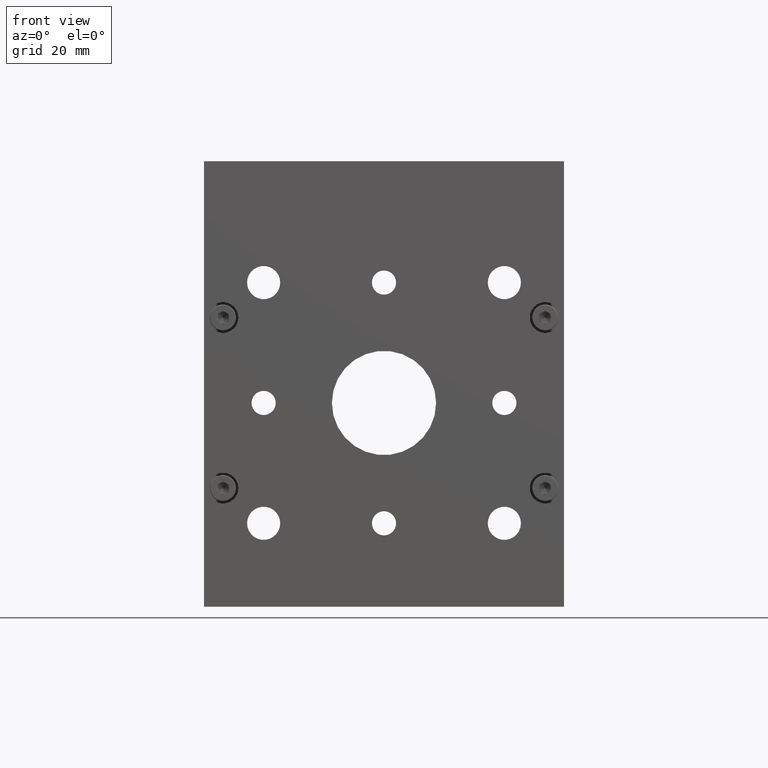
[diagram: clean part render]
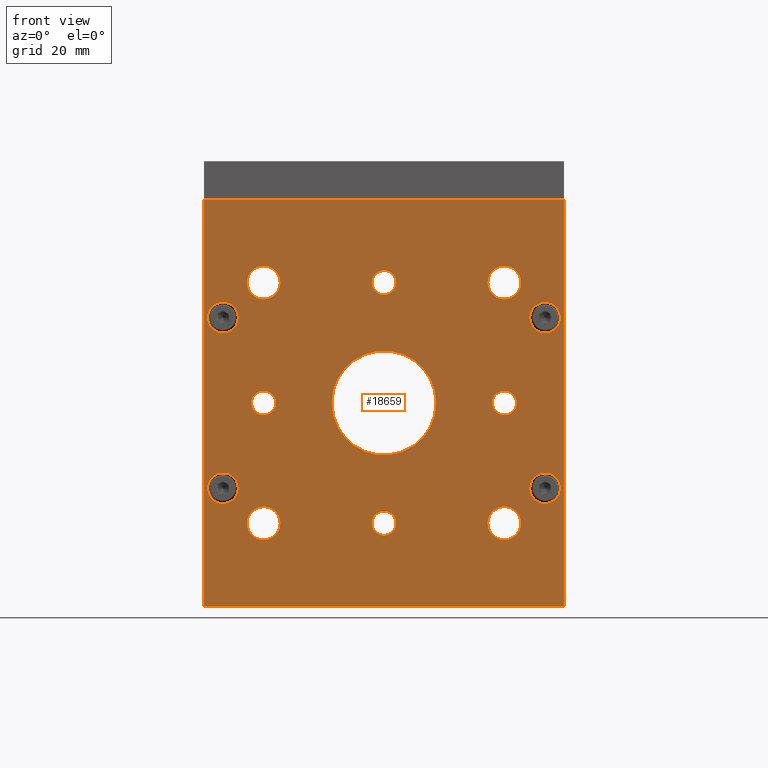
[diagram: same view with one face highlighted and labeled with its STEP entity id]
A machine part, front view. The second image highlights one B-rep face of the part: STEP entity #18659.
In plain terms, the highlighted planar face has unit normal (-0, -1, -0).
Its self-contained STEP definition (entity closure, byte-faithful):
#70 = DIRECTION ( 'NONE',  ( -1.000000000000000000, 0.0000000000000000000, 0.0000000000000000000 ) ) ;
#93 = ORIENTED_EDGE ( 'NONE', *, *, #16561, .F. ) ;
#144 = DIRECTION ( 'NONE',  ( -1.600897037462275600E-047, -1.000000000000000000, -1.224606353822377000E-016 ) ) ;
#155 = VERTEX_POINT ( 'NONE', #13869 ) ;
#421 = VERTEX_POINT ( 'NONE', #1916 ) ;
#617 = DIRECTION ( 'NONE',  ( -1.000000000000000000, 0.0000000000000000000, 0.0000000000000000000 ) ) ;
#632 = CARTESIAN_POINT ( 'NONE',  ( -25.39999999999999900, 2.255140518769849200E-014, 25.39999999999999900 ) ) ;
#674 = EDGE_LOOP ( 'NONE', ( #8489, #2364 ) ) ;
#720 = AXIS2_PLACEMENT_3D ( 'NONE', #19387, #32978, #19513 ) ;
#784 = EDGE_LOOP ( 'NONE', ( #30684, #19896 ) ) ;
#925 = CARTESIAN_POINT ( 'NONE',  ( -38.00000000000001400, 2.255140518769849200E-014, 43.00000000000000000 ) ) ;
#929 = DIRECTION ( 'NONE',  ( 1.000000000000000000, 0.0000000000000000000, 0.0000000000000000000 ) ) ;
#1094 = EDGE_LOOP ( 'NONE', ( #1379, #12726 ) ) ;
#1290 = CIRCLE ( 'NONE', #17888, 2.552699999999998000 ) ;
#1342 = CARTESIAN_POINT ( 'NONE',  ( -3.627410363077837300E-015, 2.255140518769849200E-014, 25.39999999999999900 ) ) ;
#1379 = ORIENTED_EDGE ( 'NONE', *, *, #30394, .T. ) ;
#1788 = ORIENTED_EDGE ( 'NONE', *, *, #27771, .T. ) ;
#1789 = AXIS2_PLACEMENT_3D ( 'NONE', #32107, #26209, #7375 ) ;
#1916 = CARTESIAN_POINT ( 'NONE',  ( -28.89999999999998800, 2.255140518769849200E-014, 25.39999999999999900 ) ) ;
#2111 = AXIS2_PLACEMENT_3D ( 'NONE', #13376, #35052, #21685 ) ;
#2182 = DIRECTION ( 'NONE',  ( -1.848892746611748400E-031, -1.000000000000000000, -1.224606353822377300E-016 ) ) ;
#2364 = ORIENTED_EDGE ( 'NONE', *, *, #3257, .F. ) ;
#2516 = DIRECTION ( 'NONE',  ( 1.000000000000000000, 0.0000000000000000000, 0.0000000000000000000 ) ) ;
#2713 = AXIS2_PLACEMENT_3D ( 'NONE', #6570, #17860, #14657 ) ;
#2799 = EDGE_CURVE ( 'NONE', #4566, #21662, #26670, .T. ) ;
#2809 = CARTESIAN_POINT ( 'NONE',  ( -37.25000000000000000, 2.602085213965210600E-014, 18.00000000000000000 ) ) ;
#3257 = EDGE_CURVE ( 'NONE', #11208, #15787, #5294, .T. ) ;
#3354 = CARTESIAN_POINT ( 'NONE',  ( 38.00000000000001400, 2.255140518769849200E-014, 43.00000000000000000 ) ) ;
#3404 = DIRECTION ( 'NONE',  ( 1.000000000000000000, 0.0000000000000000000, 0.0000000000000000000 ) ) ;
#3514 = VERTEX_POINT ( 'NONE', #31244 ) ;
#3774 = DIRECTION ( 'NONE',  ( 1.848892746611748400E-031, 1.000000000000000000, 1.224606353822377300E-016 ) ) ;
#3842 = CIRCLE ( 'NONE', #8502, 3.249999999999996000 ) ;
#3850 = EDGE_CURVE ( 'NONE', #28238, #19453, #13767, .T. ) ;
#4237 = EDGE_CURVE ( 'NONE', #26884, #34875, #24403, .T. ) ;
#4351 = VERTEX_POINT ( 'NONE', #29411 ) ;
#4566 = VERTEX_POINT ( 'NONE', #925 ) ;
#4640 = EDGE_CURVE ( 'NONE', #30622, #17416, #16668, .T. ) ;
#5290 = EDGE_CURVE ( 'NONE', #21717, #9640, #3842, .T. ) ;
#5294 = CIRCLE ( 'NONE', #11612, 3.499999999999989300 ) ;
#5368 = AXIS2_PLACEMENT_3D ( 'NONE', #1342, #28476, #20175 ) ;
#5454 = CARTESIAN_POINT ( 'NONE',  ( 25.39999999999999900, 2.949029909160572100E-014, -25.39999999999999900 ) ) ;
#5478 = DIRECTION ( 'NONE',  ( -1.848892746611748400E-031, -1.000000000000000000, -1.224606353822377300E-016 ) ) ;
#5499 = CARTESIAN_POINT ( 'NONE',  ( 30.75000000000000700, 2.602085213965210600E-014, 18.00000000000000000 ) ) ;
#5593 = EDGE_CURVE ( 'NONE', #421, #17822, #30291, .T. ) ;
#5632 = CIRCLE ( 'NONE', #18963, 3.249999999999996000 ) ;
#5692 = DIRECTION ( 'NONE',  ( 1.000000000000000000, -2.189528850507526700E-047, 4.806702261571226000E-032 ) ) ;
#5921 = FACE_BOUND ( 'NONE', #22144, .T. ) ;
#6020 = DIRECTION ( 'NONE',  ( 1.848892746611748400E-031, 1.000000000000000000, 1.224606353822377300E-016 ) ) ;
#6238 = CIRCLE ( 'NONE', #26968, 2.552699999999998000 ) ;
#6570 = CARTESIAN_POINT ( 'NONE',  ( -34.00000000000000000, 2.949029909160572100E-014, -18.00000000000000400 ) ) ;
#6702 = AXIS2_PLACEMENT_3D ( 'NONE', #7597, #2182, #15799 ) ;
#6860 = DIRECTION ( 'NONE',  ( -1.848892746611748400E-031, -1.000000000000000000, -1.224606353822377300E-016 ) ) ;
#6944 = ORIENTED_EDGE ( 'NONE', *, *, #4237, .F. ) ;
#7029 = EDGE_CURVE ( 'NONE', #27795, #32205, #32438, .T. ) ;
#7129 = EDGE_CURVE ( 'NONE', #17416, #30622, #9299, .T. ) ;
#7262 = ORIENTED_EDGE ( 'NONE', *, *, #11184, .F. ) ;
#7375 = DIRECTION ( 'NONE',  ( 1.000000000000000000, 0.0000000000000000000, 0.0000000000000000000 ) ) ;
#7597 = CARTESIAN_POINT ( 'NONE',  ( -25.39999999999999900, 2.949029909160572100E-014, -25.39999999999999900 ) ) ;
#7617 = FACE_OUTER_BOUND ( 'NONE', #14058, .T. ) ;
#7868 = CARTESIAN_POINT ( 'NONE',  ( -1.848892746611744700E-030, 2.775557561562891400E-014, -1.224606353822373700E-015 ) ) ;
#7875 = VERTEX_POINT ( 'NONE', #25335 ) ;
#8027 = CIRCLE ( 'NONE', #33602, 3.499999999999989300 ) ;
#8100 = DIRECTION ( 'NONE',  ( 1.000000000000000000, 0.0000000000000000000, 0.0000000000000000000 ) ) ;
#8392 = CARTESIAN_POINT ( 'NONE',  ( -37.25000000000000000, 2.949029909160572100E-014, -18.00000000000000400 ) ) ;
#8472 = FACE_BOUND ( 'NONE', #15342, .T. ) ;
#8489 = ORIENTED_EDGE ( 'NONE', *, *, #16958, .F. ) ;
#8502 = AXIS2_PLACEMENT_3D ( 'NONE', #23153, #6860, #25932 ) ;
#8708 = AXIS2_PLACEMENT_3D ( 'NONE', #9052, #11917, #31010 ) ;
#8749 = CIRCLE ( 'NONE', #1789, 3.249999999999996000 ) ;
#9052 = CARTESIAN_POINT ( 'NONE',  ( -25.39999999999999900, 2.255140518769849200E-014, 25.39999999999999900 ) ) ;
#9059 = CARTESIAN_POINT ( 'NONE',  ( 25.39999999999999900, 2.949029909160572100E-014, -25.39999999999999900 ) ) ;
#9123 = CARTESIAN_POINT ( 'NONE',  ( -38.00000000000001400, 3.295974604355933500E-014, -43.00000000000000000 ) ) ;
#9177 = VECTOR ( 'NONE', #24793, 1000.000000000000000 ) ;
#9299 = CIRCLE ( 'NONE', #33260, 3.249999999999996000 ) ;
#9313 = AXIS2_PLACEMENT_3D ( 'NONE', #29911, #10792, #16163 ) ;
#9503 = CIRCLE ( 'NONE', #5368, 2.552699999999997100 ) ;
#9565 = ORIENTED_EDGE ( 'NONE', *, *, #22268, .F. ) ;
#9640 = VERTEX_POINT ( 'NONE', #2809 ) ;
#9684 = DIRECTION ( 'NONE',  ( 1.000000000000000000, 0.0000000000000000000, 0.0000000000000000000 ) ) ;
#9839 = EDGE_CURVE ( 'NONE', #25102, #19157, #9503, .T. ) ;
#9866 = AXIS2_PLACEMENT_3D ( 'NONE', #7868, #15603, #32023 ) ;
#9884 = CIRCLE ( 'NONE', #9866, 11.00000000000000000 ) ;
#10087 = ORIENTED_EDGE ( 'NONE', *, *, #14944, .F. ) ;
#10129 = CIRCLE ( 'NONE', #15239, 3.499999999999989300 ) ;
#10352 = VERTEX_POINT ( 'NONE', #23253 ) ;
#10355 = EDGE_CURVE ( 'NONE', #10352, #25959, #12039, .T. ) ;
#10402 = AXIS2_PLACEMENT_3D ( 'NONE', #9059, #30559, #14164 ) ;
#10439 = ORIENTED_EDGE ( 'NONE', *, *, #15725, .T. ) ;
#10492 = LINE ( 'NONE', #30181, #13888 ) ;
#10505 = ORIENTED_EDGE ( 'NONE', *, *, #10355, .T. ) ;
#10782 = CIRCLE ( 'NONE', #14135, 2.552699999999997100 ) ;
#10792 = DIRECTION ( 'NONE',  ( -1.848892746611748400E-031, -1.000000000000000000, -1.224606353822377300E-016 ) ) ;
#10886 = CIRCLE ( 'NONE', #17573, 2.552699999999997100 ) ;
#11059 = EDGE_LOOP ( 'NONE', ( #34974, #9565 ) ) ;
#11163 = ORIENTED_EDGE ( 'NONE', *, *, #7129, .F. ) ;
#11184 = EDGE_CURVE ( 'NONE', #7875, #31989, #10129, .T. ) ;
#11208 = VERTEX_POINT ( 'NONE', #23118 ) ;
#11390 = DIRECTION ( 'NONE',  ( -1.000000000000000000, 2.189528850507526700E-047, -4.806702261571226000E-032 ) ) ;
#11431 = CARTESIAN_POINT ( 'NONE',  ( -27.95269999999999700, 2.602085213965210600E-014, 4.195041347971127200E-015 ) ) ;
#11612 = AXIS2_PLACEMENT_3D ( 'NONE', #5454, #29711, #8100 ) ;
#11872 = ORIENTED_EDGE ( 'NONE', *, *, #22525, .F. ) ;
#11917 = DIRECTION ( 'NONE',  ( -1.848892746611748400E-031, -1.000000000000000000, -1.224606353822377300E-016 ) ) ;
#11921 = EDGE_LOOP ( 'NONE', ( #93, #18374 ) ) ;
#11977 = CARTESIAN_POINT ( 'NONE',  ( 38.00000000000001400, 2.255140518769849200E-014, 43.00000000000000000 ) ) ;
#12039 = LINE ( 'NONE', #11977, #33013 ) ;
#12153 = DIRECTION ( 'NONE',  ( 1.848892746611748400E-031, 1.000000000000000000, 1.224606353822377300E-016 ) ) ;
#12252 = CARTESIAN_POINT ( 'NONE',  ( 25.39999999999999900, 2.602085213965210600E-014, -2.026164391697425300E-015 ) ) ;
#12263 = CARTESIAN_POINT ( 'NONE',  ( -2.552700000000000600, 2.255140518769849200E-014, 25.39999999999999900 ) ) ;
#12270 = CARTESIAN_POINT ( 'NONE',  ( -25.39999999999999900, 2.602085213965210600E-014, 4.195041347971127200E-015 ) ) ;
#12726 = ORIENTED_EDGE ( 'NONE', *, *, #20113, .T. ) ;
#12763 = FACE_BOUND ( 'NONE', #1094, .T. ) ;
#13130 = VERTEX_POINT ( 'NONE', #30134 ) ;
#13376 = CARTESIAN_POINT ( 'NONE',  ( -1.848892746611744700E-030, 2.775557561562891400E-014, -1.224606353822373700E-015 ) ) ;
#13407 = AXIS2_PLACEMENT_3D ( 'NONE', #32938, #144, #24844 ) ;
#13493 = CARTESIAN_POINT ( 'NONE',  ( 25.39999999999999900, 2.255140518769849200E-014, 25.40000000000000200 ) ) ;
#13761 = PLANE ( 'NONE',  #13407 ) ;
#13767 = CIRCLE ( 'NONE', #23704, 2.552699999999997100 ) ;
#13869 = CARTESIAN_POINT ( 'NONE',  ( 11.00000000000000000, 2.775557561562891000E-014, 1.837354429308317800E-016 ) ) ;
#13888 = VECTOR ( 'NONE', #5692, 1000.000000000000000 ) ;
#13973 = CARTESIAN_POINT ( 'NONE',  ( -25.39999999999999900, 2.602085213965210600E-014, 4.195041347971127200E-015 ) ) ;
#14058 = EDGE_LOOP ( 'NONE', ( #22614, #24545, #10505, #33647 ) ) ;
#14069 = CARTESIAN_POINT ( 'NONE',  ( -28.89999999999998800, 2.949029909160572100E-014, -25.39999999999999900 ) ) ;
#14135 = AXIS2_PLACEMENT_3D ( 'NONE', #31622, #15224, #34368 ) ;
#14164 = DIRECTION ( 'NONE',  ( 1.000000000000000000, 0.0000000000000000000, 0.0000000000000000000 ) ) ;
#14542 = ORIENTED_EDGE ( 'NONE', *, *, #20892, .F. ) ;
#14657 = DIRECTION ( 'NONE',  ( 1.000000000000000000, 0.0000000000000000000, 0.0000000000000000000 ) ) ;
#14793 = VERTEX_POINT ( 'NONE', #31127 ) ;
#14843 = FACE_BOUND ( 'NONE', #26537, .T. ) ;
#14870 = CIRCLE ( 'NONE', #10402, 3.499999999999989300 ) ;
#14944 = EDGE_CURVE ( 'NONE', #13130, #24193, #26554, .T. ) ;
#15224 = DIRECTION ( 'NONE',  ( 1.848892746611748400E-031, 1.000000000000000000, 1.224606353822377300E-016 ) ) ;
#15239 = AXIS2_PLACEMENT_3D ( 'NONE', #27942, #16813, #17289 ) ;
#15342 = EDGE_LOOP ( 'NONE', ( #35177, #11872 ) ) ;
#15513 = ORIENTED_EDGE ( 'NONE', *, *, #7029, .T. ) ;
#15603 = DIRECTION ( 'NONE',  ( -1.848892746611748400E-031, -1.000000000000000000, -1.224606353822377300E-016 ) ) ;
#15725 = EDGE_CURVE ( 'NONE', #32205, #27795, #1290, .T. ) ;
#15787 = VERTEX_POINT ( 'NONE', #17579 ) ;
#15799 = DIRECTION ( 'NONE',  ( 1.000000000000000000, 0.0000000000000000000, 0.0000000000000000000 ) ) ;
#16118 = DIRECTION ( 'NONE',  ( 1.000000000000000000, 0.0000000000000000000, 0.0000000000000000000 ) ) ;
#16163 = DIRECTION ( 'NONE',  ( 1.000000000000000000, 0.0000000000000000000, 0.0000000000000000000 ) ) ;
#16182 = CARTESIAN_POINT ( 'NONE',  ( -2.552700000000000600, 2.949029909160572100E-014, -25.39999999999999900 ) ) ;
#16323 = CARTESIAN_POINT ( 'NONE',  ( -3.627410363077837300E-015, 2.255140518769849200E-014, 25.39999999999999900 ) ) ;
#16561 = EDGE_CURVE ( 'NONE', #17822, #421, #26879, .T. ) ;
#16668 = CIRCLE ( 'NONE', #2713, 3.249999999999996000 ) ;
#16813 = DIRECTION ( 'NONE',  ( -1.848892746611748400E-031, -1.000000000000000000, -1.224606353822377300E-016 ) ) ;
#16853 = EDGE_CURVE ( 'NONE', #24193, #13130, #29022, .T. ) ;
#16958 = EDGE_CURVE ( 'NONE', #15787, #11208, #14870, .T. ) ;
#17289 = DIRECTION ( 'NONE',  ( 1.000000000000000000, 0.0000000000000000000, 0.0000000000000000000 ) ) ;
#17416 = VERTEX_POINT ( 'NONE', #21967 ) ;
#17573 = AXIS2_PLACEMENT_3D ( 'NONE', #16323, #21655, #70 ) ;
#17579 = CARTESIAN_POINT ( 'NONE',  ( 28.89999999999998800, 2.949029909160572100E-014, -25.39999999999999900 ) ) ;
#17822 = VERTEX_POINT ( 'NONE', #29303 ) ;
#17839 = FACE_BOUND ( 'NONE', #28361, .T. ) ;
#17860 = DIRECTION ( 'NONE',  ( -1.848892746611748400E-031, -1.000000000000000000, -1.224606353822377300E-016 ) ) ;
#17888 = AXIS2_PLACEMENT_3D ( 'NONE', #12252, #3774, #28358 ) ;
#17941 = DIRECTION ( 'NONE',  ( -1.000000000000000000, 0.0000000000000000000, 0.0000000000000000000 ) ) ;
#18374 = ORIENTED_EDGE ( 'NONE', *, *, #5593, .F. ) ;
#18603 = CARTESIAN_POINT ( 'NONE',  ( 2.552699999999993100, 2.255140518769854900E-014, 25.39999999999999900 ) ) ;
#18656 = EDGE_CURVE ( 'NONE', #25959, #4566, #19536, .T. ) ;
#18659 = ADVANCED_FACE ( 'NONE', ( #18688, #32452, #25117, #5921, #17839, #27304, #12763, #33740, #26435, #19124, #34983, #14843, #7617, #8472 ), #13761, .T. ) ;
#18688 = FACE_BOUND ( 'NONE', #11921, .T. ) ;
#18963 = AXIS2_PLACEMENT_3D ( 'NONE', #30923, #33707, #929 ) ;
#19026 = ORIENTED_EDGE ( 'NONE', *, *, #25227, .F. ) ;
#19047 = EDGE_CURVE ( 'NONE', #31989, #7875, #8027, .T. ) ;
#19124 = FACE_BOUND ( 'NONE', #27729, .T. ) ;
#19157 = VERTEX_POINT ( 'NONE', #18603 ) ;
#19387 = CARTESIAN_POINT ( 'NONE',  ( 25.39999999999999900, 2.602085213965210600E-014, -2.026164391697425300E-015 ) ) ;
#19453 = VERTEX_POINT ( 'NONE', #16182 ) ;
#19513 = DIRECTION ( 'NONE',  ( -1.000000000000000000, 0.0000000000000000000, 0.0000000000000000000 ) ) ;
#19536 = LINE ( 'NONE', #22090, #30703 ) ;
#19612 = CARTESIAN_POINT ( 'NONE',  ( 22.84730000000000100, 2.602085213965210600E-014, -2.026164391697425300E-015 ) ) ;
#19692 = DIRECTION ( 'NONE',  ( -1.848892746611748400E-031, -1.000000000000000000, -1.224606353822377300E-016 ) ) ;
#19896 = ORIENTED_EDGE ( 'NONE', *, *, #20576, .T. ) ;
#20113 = EDGE_CURVE ( 'NONE', #4351, #21148, #6238, .T. ) ;
#20175 = DIRECTION ( 'NONE',  ( -1.000000000000000000, 0.0000000000000000000, 0.0000000000000000000 ) ) ;
#20576 = EDGE_CURVE ( 'NONE', #19157, #25102, #10886, .T. ) ;
#20596 = DIRECTION ( 'NONE',  ( -1.848892746611748400E-031, -1.000000000000000000, -1.224606353822377300E-016 ) ) ;
#20892 = EDGE_CURVE ( 'NONE', #3514, #26847, #8749, .T. ) ;
#20898 = ORIENTED_EDGE ( 'NONE', *, *, #16853, .F. ) ;
#20990 = ORIENTED_EDGE ( 'NONE', *, *, #30693, .F. ) ;
#21148 = VERTEX_POINT ( 'NONE', #11431 ) ;
#21308 = AXIS2_PLACEMENT_3D ( 'NONE', #632, #19692, #3404 ) ;
#21444 = CIRCLE ( 'NONE', #29815, 3.249999999999996000 ) ;
#21653 = CARTESIAN_POINT ( 'NONE',  ( 21.90000000000000900, 2.255140518769849200E-014, 25.40000000000000200 ) ) ;
#21655 = DIRECTION ( 'NONE',  ( 1.848892746611748400E-031, 1.000000000000000000, 1.224606353822377300E-016 ) ) ;
#21662 = VERTEX_POINT ( 'NONE', #9123 ) ;
#21685 = DIRECTION ( 'NONE',  ( 1.000000000000000000, 0.0000000000000000000, 5.252536211965189100E-032 ) ) ;
#21717 = VERTEX_POINT ( 'NONE', #25330 ) ;
#21769 = CARTESIAN_POINT ( 'NONE',  ( -34.00000000000000000, 2.949029909160572100E-014, -18.00000000000000400 ) ) ;
#21888 = DIRECTION ( 'NONE',  ( -1.848892746611748400E-031, -1.000000000000000000, -1.224606353822377300E-016 ) ) ;
#21967 = CARTESIAN_POINT ( 'NONE',  ( -30.75000000000000700, 2.949029909160572100E-014, -18.00000000000000400 ) ) ;
#22042 = ORIENTED_EDGE ( 'NONE', *, *, #3850, .T. ) ;
#22090 = CARTESIAN_POINT ( 'NONE',  ( -38.00000000000001400, 2.255140518769849200E-014, 43.00000000000000000 ) ) ;
#22144 = EDGE_LOOP ( 'NONE', ( #10087, #20898 ) ) ;
#22268 = EDGE_CURVE ( 'NONE', #9640, #21717, #5632, .T. ) ;
#22283 = DIRECTION ( 'NONE',  ( 1.848892746611748400E-031, 1.000000000000000000, 1.224606353822377300E-016 ) ) ;
#22290 = ORIENTED_EDGE ( 'NONE', *, *, #4640, .F. ) ;
#22525 = EDGE_CURVE ( 'NONE', #155, #14793, #9884, .T. ) ;
#22531 = DIRECTION ( 'NONE',  ( -1.000000000000000000, 0.0000000000000000000, 0.0000000000000000000 ) ) ;
#22614 = ORIENTED_EDGE ( 'NONE', *, *, #2799, .T. ) ;
#22903 = CARTESIAN_POINT ( 'NONE',  ( 37.25000000000000000, 2.949029909160572100E-014, -18.00000000000000400 ) ) ;
#23020 = DIRECTION ( 'NONE',  ( 5.493374013224255900E-032, -1.224606353822377800E-016, 1.000000000000000000 ) ) ;
#23051 = EDGE_LOOP ( 'NONE', ( #1788, #22042 ) ) ;
#23118 = CARTESIAN_POINT ( 'NONE',  ( 21.90000000000000900, 2.949029909160572100E-014, -25.39999999999999900 ) ) ;
#23153 = CARTESIAN_POINT ( 'NONE',  ( -34.00000000000000000, 2.602085213965210600E-014, 18.00000000000000000 ) ) ;
#23253 = CARTESIAN_POINT ( 'NONE',  ( 38.00000000000001400, 3.295974604355933500E-014, -43.00000000000000000 ) ) ;
#23704 = AXIS2_PLACEMENT_3D ( 'NONE', #30845, #6020, #617 ) ;
#24193 = VERTEX_POINT ( 'NONE', #14069 ) ;
#24403 = CIRCLE ( 'NONE', #27876, 3.249999999999996000 ) ;
#24545 = ORIENTED_EDGE ( 'NONE', *, *, #24854, .T. ) ;
#24793 = DIRECTION ( 'NONE',  ( -5.493374013224255900E-032, 1.224606353822377800E-016, -1.000000000000000000 ) ) ;
#24844 = DIRECTION ( 'NONE',  ( 1.000000000000000000, -2.189528850507526700E-047, 4.806702261571226000E-032 ) ) ;
#24854 = EDGE_CURVE ( 'NONE', #21662, #10352, #10492, .T. ) ;
#24916 = CARTESIAN_POINT ( 'NONE',  ( -38.00000000000001400, 2.255140518769849200E-014, 43.00000000000000000 ) ) ;
#25102 = VERTEX_POINT ( 'NONE', #12263 ) ;
#25117 = FACE_BOUND ( 'NONE', #674, .T. ) ;
#25227 = EDGE_CURVE ( 'NONE', #34875, #26884, #34431, .T. ) ;
#25330 = CARTESIAN_POINT ( 'NONE',  ( -30.75000000000000700, 2.602085213965210600E-014, 18.00000000000000000 ) ) ;
#25335 = CARTESIAN_POINT ( 'NONE',  ( 28.89999999999998800, 2.255140518769849200E-014, 25.40000000000000200 ) ) ;
#25932 = DIRECTION ( 'NONE',  ( 1.000000000000000000, 0.0000000000000000000, 0.0000000000000000000 ) ) ;
#25959 = VERTEX_POINT ( 'NONE', #3354 ) ;
#26138 = CARTESIAN_POINT ( 'NONE',  ( 34.00000000000000000, 2.602085213965210600E-014, 18.00000000000000000 ) ) ;
#26209 = DIRECTION ( 'NONE',  ( -1.848892746611748400E-031, -1.000000000000000000, -1.224606353822377300E-016 ) ) ;
#26435 = FACE_BOUND ( 'NONE', #11059, .T. ) ;
#26537 = EDGE_LOOP ( 'NONE', ( #19026, #6944 ) ) ;
#26554 = CIRCLE ( 'NONE', #6702, 3.499999999999989300 ) ;
#26670 = LINE ( 'NONE', #24916, #9177 ) ;
#26847 = VERTEX_POINT ( 'NONE', #5499 ) ;
#26879 = CIRCLE ( 'NONE', #21308, 3.499999999999989300 ) ;
#26884 = VERTEX_POINT ( 'NONE', #35394 ) ;
#26968 = AXIS2_PLACEMENT_3D ( 'NONE', #13973, #22283, #22531 ) ;
#26995 = CARTESIAN_POINT ( 'NONE',  ( 34.00000000000000000, 2.949029909160572100E-014, -18.00000000000000400 ) ) ;
#27304 = FACE_BOUND ( 'NONE', #784, .T. ) ;
#27516 = EDGE_LOOP ( 'NONE', ( #7262, #31975 ) ) ;
#27565 = DIRECTION ( 'NONE',  ( 1.000000000000000000, 0.0000000000000000000, 0.0000000000000000000 ) ) ;
#27729 = EDGE_LOOP ( 'NONE', ( #11163, #22290 ) ) ;
#27771 = EDGE_CURVE ( 'NONE', #19453, #28238, #10782, .T. ) ;
#27795 = VERTEX_POINT ( 'NONE', #33002 ) ;
#27873 = EDGE_LOOP ( 'NONE', ( #14542, #20990 ) ) ;
#27876 = AXIS2_PLACEMENT_3D ( 'NONE', #26995, #29756, #16118 ) ;
#27942 = CARTESIAN_POINT ( 'NONE',  ( 25.39999999999999900, 2.255140518769849200E-014, 25.40000000000000200 ) ) ;
#28028 = DIRECTION ( 'NONE',  ( 1.000000000000000000, 0.0000000000000000000, 0.0000000000000000000 ) ) ;
#28238 = VERTEX_POINT ( 'NONE', #34890 ) ;
#28358 = DIRECTION ( 'NONE',  ( -1.000000000000000000, 0.0000000000000000000, 0.0000000000000000000 ) ) ;
#28361 = EDGE_LOOP ( 'NONE', ( #10439, #15513 ) ) ;
#28476 = DIRECTION ( 'NONE',  ( 1.848892746611748400E-031, 1.000000000000000000, 1.224606353822377300E-016 ) ) ;
#28509 = CIRCLE ( 'NONE', #2111, 11.00000000000000000 ) ;
#29022 = CIRCLE ( 'NONE', #31934, 3.499999999999989300 ) ;
#29303 = CARTESIAN_POINT ( 'NONE',  ( -21.90000000000000900, 2.255140518769849200E-014, 25.39999999999999900 ) ) ;
#29411 = CARTESIAN_POINT ( 'NONE',  ( -22.84730000000000100, 2.602085213965216300E-014, 5.119960113300660700E-015 ) ) ;
#29711 = DIRECTION ( 'NONE',  ( -1.848892746611748400E-031, -1.000000000000000000, -1.224606353822377300E-016 ) ) ;
#29756 = DIRECTION ( 'NONE',  ( -1.848892746611748400E-031, -1.000000000000000000, -1.224606353822377300E-016 ) ) ;
#29815 = AXIS2_PLACEMENT_3D ( 'NONE', #26138, #20596, #9684 ) ;
#29824 = CIRCLE ( 'NONE', #30279, 2.552699999999998000 ) ;
#29911 = CARTESIAN_POINT ( 'NONE',  ( 34.00000000000000000, 2.949029909160572100E-014, -18.00000000000000400 ) ) ;
#30134 = CARTESIAN_POINT ( 'NONE',  ( -21.90000000000000900, 2.949029909160572100E-014, -25.39999999999999900 ) ) ;
#30181 = CARTESIAN_POINT ( 'NONE',  ( -38.00000000000001400, 3.295974604355933500E-014, -43.00000000000000000 ) ) ;
#30279 = AXIS2_PLACEMENT_3D ( 'NONE', #12270, #12153, #17941 ) ;
#30291 = CIRCLE ( 'NONE', #8708, 3.499999999999989300 ) ;
#30394 = EDGE_CURVE ( 'NONE', #21148, #4351, #29824, .T. ) ;
#30487 = EDGE_CURVE ( 'NONE', #14793, #155, #28509, .T. ) ;
#30559 = DIRECTION ( 'NONE',  ( -1.848892746611748400E-031, -1.000000000000000000, -1.224606353822377300E-016 ) ) ;
#30622 = VERTEX_POINT ( 'NONE', #8392 ) ;
#30684 = ORIENTED_EDGE ( 'NONE', *, *, #9839, .T. ) ;
#30693 = EDGE_CURVE ( 'NONE', #26847, #3514, #21444, .T. ) ;
#30703 = VECTOR ( 'NONE', #11390, 1000.000000000000000 ) ;
#30845 = CARTESIAN_POINT ( 'NONE',  ( -3.627410363077837300E-015, 2.949029909160572100E-014, -25.39999999999999900 ) ) ;
#30923 = CARTESIAN_POINT ( 'NONE',  ( -34.00000000000000000, 2.602085213965210600E-014, 18.00000000000000000 ) ) ;
#31010 = DIRECTION ( 'NONE',  ( 1.000000000000000000, 0.0000000000000000000, 0.0000000000000000000 ) ) ;
#31127 = CARTESIAN_POINT ( 'NONE',  ( -11.00000000000000000, 2.775557561562891400E-014, -1.163376036131255600E-015 ) ) ;
#31244 = CARTESIAN_POINT ( 'NONE',  ( 37.25000000000000000, 2.602085213965210600E-014, 18.00000000000000000 ) ) ;
#31622 = CARTESIAN_POINT ( 'NONE',  ( -3.627410363077837300E-015, 2.949029909160572100E-014, -25.39999999999999900 ) ) ;
#31934 = AXIS2_PLACEMENT_3D ( 'NONE', #35378, #21888, #27565 ) ;
#31975 = ORIENTED_EDGE ( 'NONE', *, *, #19047, .F. ) ;
#31989 = VERTEX_POINT ( 'NONE', #21653 ) ;
#32023 = DIRECTION ( 'NONE',  ( 1.000000000000000000, 0.0000000000000000000, 5.252536211965189100E-032 ) ) ;
#32107 = CARTESIAN_POINT ( 'NONE',  ( 34.00000000000000000, 2.602085213965210600E-014, 18.00000000000000000 ) ) ;
#32205 = VERTEX_POINT ( 'NONE', #19612 ) ;
#32438 = CIRCLE ( 'NONE', #720, 2.552699999999998000 ) ;
#32452 = FACE_BOUND ( 'NONE', #27516, .T. ) ;
#32654 = DIRECTION ( 'NONE',  ( -1.848892746611748400E-031, -1.000000000000000000, -1.224606353822377300E-016 ) ) ;
#32938 = CARTESIAN_POINT ( 'NONE',  ( -38.00000000000001400, 3.295974604355933500E-014, -43.00000000000000000 ) ) ;
#32978 = DIRECTION ( 'NONE',  ( 1.848892746611748400E-031, 1.000000000000000000, 1.224606353822377300E-016 ) ) ;
#33002 = CARTESIAN_POINT ( 'NONE',  ( 27.95269999999999700, 2.602085213965216300E-014, -1.101245626367893000E-015 ) ) ;
#33013 = VECTOR ( 'NONE', #23020, 1000.000000000000000 ) ;
#33260 = AXIS2_PLACEMENT_3D ( 'NONE', #21769, #5478, #28028 ) ;
#33602 = AXIS2_PLACEMENT_3D ( 'NONE', #13493, #32654, #2516 ) ;
#33647 = ORIENTED_EDGE ( 'NONE', *, *, #18656, .T. ) ;
#33707 = DIRECTION ( 'NONE',  ( -1.848892746611748400E-031, -1.000000000000000000, -1.224606353822377300E-016 ) ) ;
#33740 = FACE_BOUND ( 'NONE', #23051, .T. ) ;
#34368 = DIRECTION ( 'NONE',  ( -1.000000000000000000, 0.0000000000000000000, 0.0000000000000000000 ) ) ;
#34431 = CIRCLE ( 'NONE', #9313, 3.249999999999996000 ) ;
#34875 = VERTEX_POINT ( 'NONE', #22903 ) ;
#34890 = CARTESIAN_POINT ( 'NONE',  ( 2.552699999999993100, 2.949029909160577700E-014, -25.39999999999999900 ) ) ;
#34974 = ORIENTED_EDGE ( 'NONE', *, *, #5290, .F. ) ;
#34983 = FACE_BOUND ( 'NONE', #27873, .T. ) ;
#35052 = DIRECTION ( 'NONE',  ( -1.848892746611748400E-031, -1.000000000000000000, -1.224606353822377300E-016 ) ) ;
#35177 = ORIENTED_EDGE ( 'NONE', *, *, #30487, .F. ) ;
#35378 = CARTESIAN_POINT ( 'NONE',  ( -25.39999999999999900, 2.949029909160572100E-014, -25.39999999999999900 ) ) ;
#35394 = CARTESIAN_POINT ( 'NONE',  ( 30.75000000000000700, 2.949029909160572100E-014, -18.00000000000000400 ) ) ;